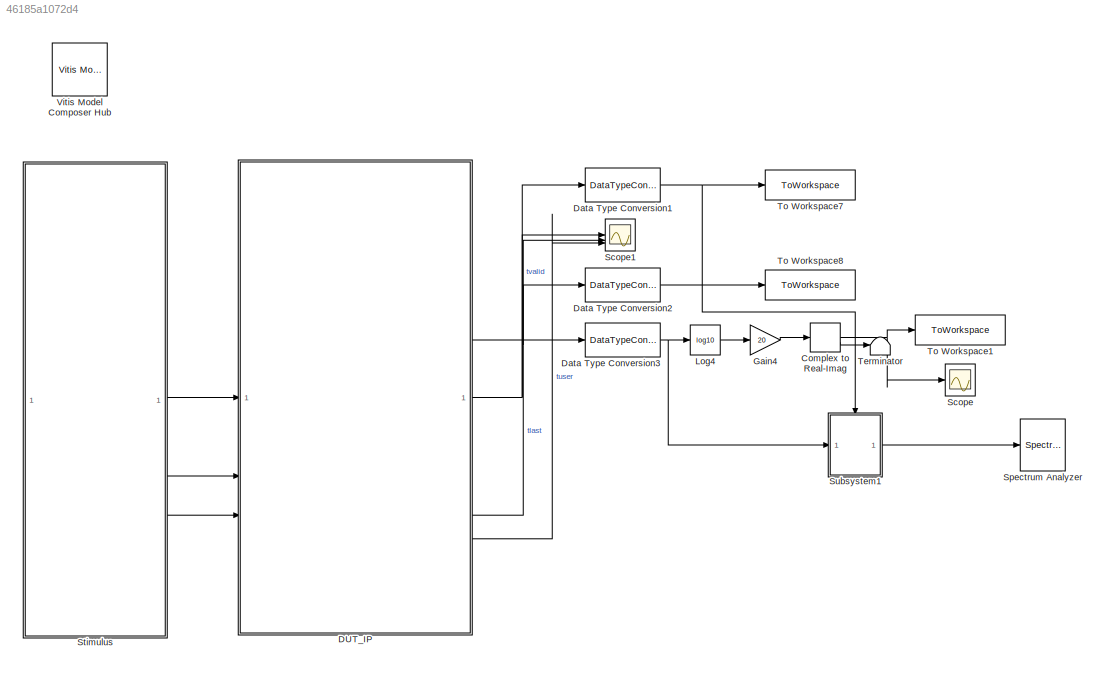
MODEL slx_46185a1072d4
KIND model
CONFIG AbsTol = auto
CONFIG EnableMultiTasking = off
CONFIG FixedStep = auto
CONFIG InitFcn = f = 12.288e6;\nfs = 5*61.44e6;\nN = 2048;\nn = 0:N-1;\nHamming = 0.54 - 0.46 * cos(2*pi*n/N);\nNorm_Ham = sum(Hamming);\nHanning = 0.5 * (1 + cos(2*pi*n/N));\nNorm_Han = sum(Hanning);
CONFIG MaxStep = auto
CONFIG MinStep = auto
CONFIG RelTol = 1e-3
CONFIG SampleTimeConstraint = Unconstrained
CONFIG SolverName = VariableStepAuto
CONFIG StartFcn = f = 12.288e6;\nfs = 5*61.44e6;\nN = 2048;\nn = 0:N-1;\nHamming = 0.54 - 0.46 * cos(2*pi*n/N);\nNorm_Ham = sum(Hamming);\nHanning = 0.5 * (1 + cos(2*pi*n/N));\nNorm_Han = sum(Hanning);
CONFIG StartTime = 0.0
CONFIG StopTime = 5*2*2048*15/fs
BLOCK [ComplexToRealImag] Complex to Real-Imag
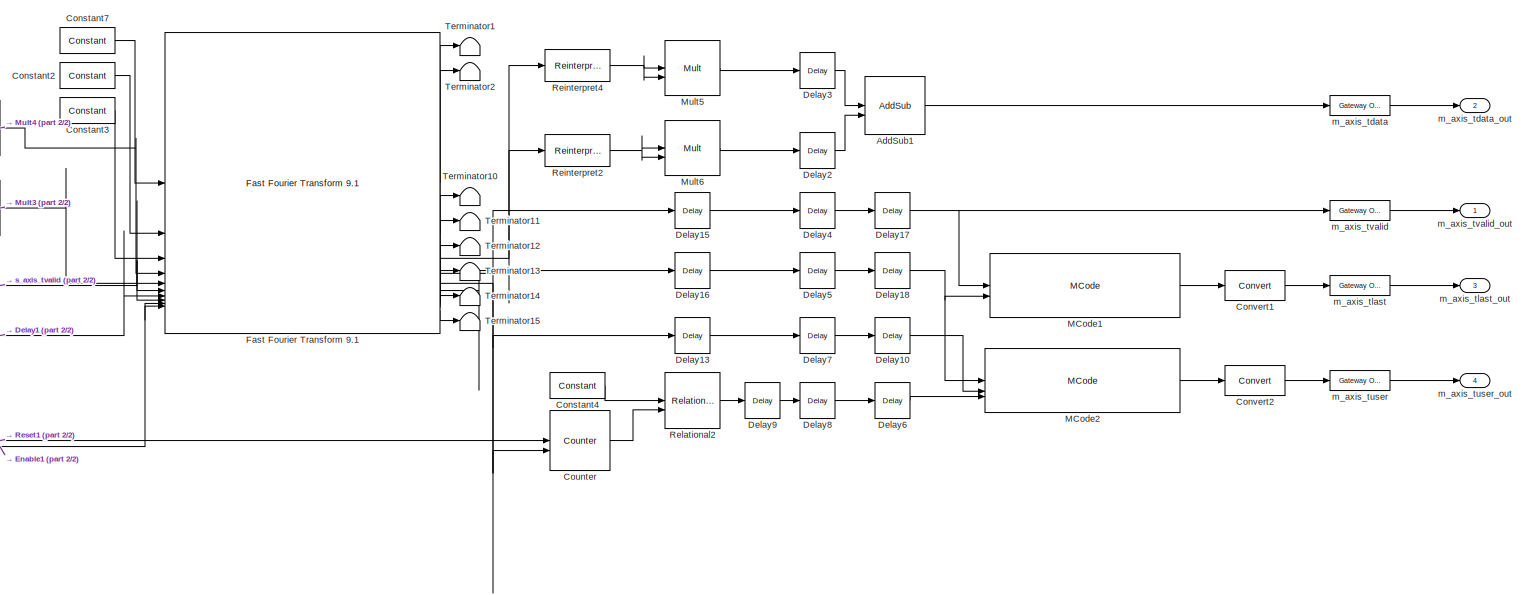
[diagram: DUT_IP - part 1/2, right side, full height]
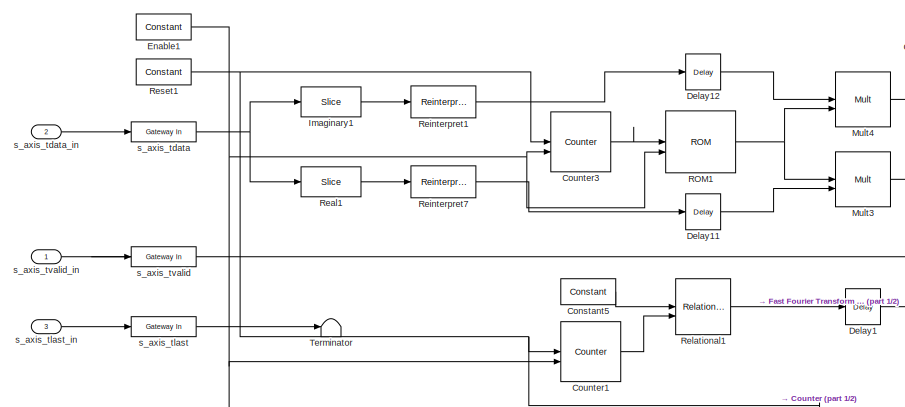
[diagram: DUT_IP - part 2/2, middle left region]
BLOCK [SubSystem] DUT_IP
BLOCK [Reference] DUT_IP/AddSub1  REF=hdlBasic/AddSub
  SourceBlock = hdlBasic/AddSub
  SourceType = Adder/Subtracter Block
BLOCK [Reference] DUT_IP/Constant2  REF=hdlBasic/Constant
  SourceBlock = hdlBasic/Constant
  SourceType = Constant Block Block
BLOCK [Reference] DUT_IP/Constant3  REF=hdlBasic/Constant
  SourceBlock = hdlBasic/Constant
  SourceType = Constant Block Block
BLOCK [Reference] DUT_IP/Constant4  REF=hdlBasic/Constant
  SourceBlock = hdlBasic/Constant
  SourceType = Constant Block Block
BLOCK [Reference] DUT_IP/Constant5  REF=hdlBasic/Constant
  SourceBlock = hdlBasic/Constant
  SourceType = Constant Block Block
BLOCK [Reference] DUT_IP/Constant7  REF=hdlBasic/Constant
  SourceBlock = hdlBasic/Constant
  SourceType = Constant Block Block
BLOCK [Reference] DUT_IP/Convert1  REF=hdlBasic/Convert
  SourceBlock = hdlBasic/Convert
  SourceType = Type Converter Block
BLOCK [Reference] DUT_IP/Convert2  REF=hdlBasic/Convert
  SourceBlock = hdlBasic/Convert
  SourceType = Type Converter Block
BLOCK [Reference] DUT_IP/Counter  REF=hdlBasic/Counter
  SourceBlock = hdlBasic/Counter
  SourceType = Counter Block
BLOCK [Reference] DUT_IP/Counter1  REF=hdlBasic/Counter
  SourceBlock = hdlBasic/Counter
  SourceType = Counter Block
BLOCK [Reference] DUT_IP/Counter3  REF=hdlBasic/Counter
  SourceBlock = hdlBasic/Counter
  SourceType = Counter Block
BLOCK [Reference] DUT_IP/Delay1  REF=hdlBasic/Delay
  SourceBlock = hdlBasic/Delay
  SourceType = Delay Block
BLOCK [Reference] DUT_IP/Delay10  REF=hdlBasic/Delay
  SourceBlock = hdlBasic/Delay
  SourceType = Delay Block
BLOCK [Reference] DUT_IP/Delay11  REF=hdlBasic/Delay
  SourceBlock = hdlBasic/Delay
  SourceType = Delay Block
BLOCK [Reference] DUT_IP/Delay12  REF=hdlBasic/Delay
  NameLocation = top
  SourceBlock = hdlBasic/Delay
  SourceType = Delay Block
BLOCK [Reference] DUT_IP/Delay13  REF=hdlBasic/Delay
  SourceBlock = hdlBasic/Delay
  SourceType = Delay Block
BLOCK [Reference] DUT_IP/Delay15  REF=hdlBasic/Delay
  SourceBlock = hdlBasic/Delay
  SourceType = Delay Block
BLOCK [Reference] DUT_IP/Delay16  REF=hdlBasic/Delay
  SourceBlock = hdlBasic/Delay
  SourceType = Delay Block
BLOCK [Reference] DUT_IP/Delay17  REF=hdlBasic/Delay
  SourceBlock = hdlBasic/Delay
  SourceType = Delay Block
BLOCK [Reference] DUT_IP/Delay18  REF=hdlBasic/Delay
  SourceBlock = hdlBasic/Delay
  SourceType = Delay Block
BLOCK [Reference] DUT_IP/Delay2  REF=hdlBasic/Delay
  SourceBlock = hdlBasic/Delay
  SourceType = Delay Block
BLOCK [Reference] DUT_IP/Delay3  REF=hdlBasic/Delay
  SourceBlock = hdlBasic/Delay
  SourceType = Delay Block
BLOCK [Reference] DUT_IP/Delay4  REF=hdlBasic/Delay
  SourceBlock = hdlBasic/Delay
  SourceType = Delay Block
BLOCK [Reference] DUT_IP/Delay5  REF=hdlBasic/Delay
  SourceBlock = hdlBasic/Delay
  SourceType = Delay Block
BLOCK [Reference] DUT_IP/Delay6  REF=hdlBasic/Delay
  SourceBlock = hdlBasic/Delay
  SourceType = Delay Block
BLOCK [Reference] DUT_IP/Delay7  REF=hdlBasic/Delay
  SourceBlock = hdlBasic/Delay
  SourceType = Delay Block
BLOCK [Reference] DUT_IP/Delay8  REF=hdlBasic/Delay
  SourceBlock = hdlBasic/Delay
  SourceType = Delay Block
BLOCK [Reference] DUT_IP/Delay9  REF=hdlBasic/Delay
  SourceBlock = hdlBasic/Delay
  SourceType = Delay Block
BLOCK [Reference] DUT_IP/Enable1  REF=hdlBasic/Constant
  SourceBlock = hdlBasic/Constant
  SourceType = Constant Block Block
BLOCK [Reference] DUT_IP/Fast Fourier Transform 9.1  REF=hdlDSPIP/Fast Fourier Transform 9.1 
  SourceBlock = hdlDSPIP/Fast Fourier Transform 9.1
  SourceType = Fast Fourier Transform 9.1  Block
BLOCK [Reference] DUT_IP/Imaginary1  REF=hdlBasic/Slice
  SourceBlock = hdlBasic/Slice
  SourceType = Bit Slice Extractor Block
BLOCK [Reference] DUT_IP/MCode1  REF=hdlBasic/MCode
  SourceBlock = hdlBasic/MCode
  SourceType = MCode
BLOCK [Reference] DUT_IP/MCode2  REF=hdlBasic/MCode
  SourceBlock = hdlBasic/MCode
  SourceType = MCode
BLOCK [Reference] DUT_IP/Mult3  REF=hdlBasic/Mult
  SourceBlock = hdlBasic/Mult
  SourceType = Multiplier Block
BLOCK [Reference] DUT_IP/Mult4  REF=hdlBasic/Mult
  SourceBlock = hdlBasic/Mult
  SourceType = Multiplier Block
BLOCK [Reference] DUT_IP/Mult5  REF=hdlBasic/Mult
  SourceBlock = hdlBasic/Mult
  SourceType = Multiplier Block
BLOCK [Reference] DUT_IP/Mult6  REF=hdlBasic/Mult
  SourceBlock = hdlBasic/Mult
  SourceType = Multiplier Block
BLOCK [Reference] DUT_IP/ROM1  REF=hdlBasic/ROM
  SourceBlock = hdlBasic/ROM
  SourceType = Single Port Read-Only Memory Block
BLOCK [Reference] DUT_IP/Real1  REF=hdlBasic/Slice
  SourceBlock = hdlBasic/Slice
  SourceType = Bit Slice Extractor Block
BLOCK [Reference] DUT_IP/Reinterpret1  REF=hdlBasic/Reinterpret
  SourceBlock = hdlBasic/Reinterpret
  SourceType = Type Reinterpreter Block
BLOCK [Reference] DUT_IP/Reinterpret2  REF=hdlBasic/Reinterpret
  SourceBlock = hdlBasic/Reinterpret
  SourceType = Type Reinterpreter Block
BLOCK [Reference] DUT_IP/Reinterpret4  REF=hdlBasic/Reinterpret
  SourceBlock = hdlBasic/Reinterpret
  SourceType = Type Reinterpreter Block
BLOCK [Reference] DUT_IP/Reinterpret7  REF=hdlBasic/Reinterpret
  SourceBlock = hdlBasic/Reinterpret
  SourceType = Type Reinterpreter Block
BLOCK [Reference] DUT_IP/Relational1  REF=hdlBasic/Relational
  SourceBlock = hdlBasic/Relational
  SourceType = Arithmetic Relational Operator Block
BLOCK [Reference] DUT_IP/Relational2  REF=hdlBasic/Relational
  SourceBlock = hdlBasic/Relational
  SourceType = Arithmetic Relational Operator Block
BLOCK [Reference] DUT_IP/Reset1  REF=hdlBasic/Constant
  SourceBlock = hdlBasic/Constant
  SourceType = Constant Block Block
BLOCK [Terminator] DUT_IP/Terminator
BLOCK [Terminator] DUT_IP/Terminator1
BLOCK [Terminator] DUT_IP/Terminator10
BLOCK [Terminator] DUT_IP/Terminator11
BLOCK [Terminator] DUT_IP/Terminator12
BLOCK [Terminator] DUT_IP/Terminator13
BLOCK [Terminator] DUT_IP/Terminator14
BLOCK [Terminator] DUT_IP/Terminator15
BLOCK [Terminator] DUT_IP/Terminator2
BLOCK [Reference] DUT_IP/m_axis_tdata  REF=hdlBasic/Gateway Out
  SourceBlock = hdlBasic/Gateway Out
  SourceType = Gateway Out Block
BLOCK [Outport] DUT_IP/m_axis_tdata_out
  Port = 2
BLOCK [Reference] DUT_IP/m_axis_tlast  REF=hdlBasic/Gateway Out
  SourceBlock = hdlBasic/Gateway Out
  SourceType = Gateway Out Block
BLOCK [Outport] DUT_IP/m_axis_tlast_out
  Port = 3
BLOCK [Reference] DUT_IP/m_axis_tuser  REF=hdlBasic/Gateway Out
  SourceBlock = hdlBasic/Gateway Out
  SourceType = Gateway Out Block
BLOCK [Outport] DUT_IP/m_axis_tuser_out
  Port = 4
BLOCK [Reference] DUT_IP/m_axis_tvalid  REF=hdlBasic/Gateway Out
  SourceBlock = hdlBasic/Gateway Out
  SourceType = Gateway Out Block
BLOCK [Outport] DUT_IP/m_axis_tvalid_out
BLOCK [Reference] DUT_IP/s_axis_tdata  REF=hdlBasic/Gateway In
  SourceBlock = hdlBasic/Gateway In
  SourceType = Gateway In Block
BLOCK [Inport] DUT_IP/s_axis_tdata_in
  Port = 2
BLOCK [Reference] DUT_IP/s_axis_tlast  REF=hdlBasic/Gateway In
  SourceBlock = hdlBasic/Gateway In
  SourceType = Gateway In Block
BLOCK [Inport] DUT_IP/s_axis_tlast_in
  Port = 3
BLOCK [Reference] DUT_IP/s_axis_tvalid  REF=hdlBasic/Gateway In
  SourceBlock = hdlBasic/Gateway In
  SourceType = Gateway In Block
BLOCK [Inport] DUT_IP/s_axis_tvalid_in
BLOCK [DataTypeConversion] Data Type Conversion1
  OutDataTypeStr = double
  RndMeth = Floor
BLOCK [DataTypeConversion] Data Type Conversion2
  OutDataTypeStr = double
  RndMeth = Floor
BLOCK [DataTypeConversion] Data Type Conversion3
  OutDataTypeStr = double
  RndMeth = Floor
BLOCK [Gain] Gain4
  Gain = 20
BLOCK [Math] Log4
  Operator = log10
  OutputSignalType = real
BLOCK [Scope] Scope
  Floating = off
  NumInputPorts = 1
  ScopeSpecificationString = Simulink.scopes.TimeScopeBlockCfg('CurrentConfiguration', extmgr.ConfigurationSet(extmgr.Configuration('Core','General UI',true),extmgr.Configuration('Core','Source UI',true),extmgr.Configuration('Sources','WiredSimulink',true,'DataLoggingVariableName','ScopeData1'),extmgr.Configuration('Visuals','Time Domain',true,'SerializedDisplays',{struct('MinYLimReal','-185.92436','MaxYLimReal','-12.44876','...<+1534ch>
BLOCK [Scope] Scope1
  Floating = off
  NumInputPorts = 3
  ScopeSpecificationString = Simulink.scopes.TimeScopeBlockCfg('CurrentConfiguration', extmgr.ConfigurationSet(extmgr.Configuration('Core','General UI',true),extmgr.Configuration('Core','Source UI',true),extmgr.Configuration('Sources','WiredSimulink',true),extmgr.Configuration('Visuals','Time Domain',true,'SerializedDisplays',{struct('MinYLimReal','-0.125','MaxYLimReal','1.125','YLabelReal','','MinYLimMag','0.00000','MaxYLimM...<+2762ch>
BLOCK [SpectrumAnalyzer] Spectrum Analyzer
  AveragingMethod = Exponential
  AxesScaling = Manual
  CenterFrequency = 2500
  DefaultConfigurationName = spbscopes.SpectrumAnalyzerBlockCfg
  ExpandToolstrip = on
  FrequencyInputRBWFromPort = 0
  FrequencyInputRBWPort = 0
  FrequencyVectorFromPort = 0
  FrequencyVectorPort = 0
  GraphicalSettings = {"GraphicalSettings":{"Style":{"BackgroundColor":[0.12941176470588237,0.12941176470588237,0.12941176470588237],"AxesColor":[0,0,0],"LabelsColor":[0.6862745098039216,0.6862745098039216,0.6862745098039216],"PreserveColors":false,"Visible":[true],"LineStyle":["-"],"LineColor":[[1,1,0.06666666666666667]],"LineWidth":[0.5],"Marker":["none"],"FontSize":"small"},"Cursors":{"Enabled":false,"XLocation":[2,...<+874ch>
  InputDomain = Frequency
  IsFrequencyInputMode = 1
  PlotAsTwoSidedSpectrum = off
  SampleRate = 307200000
  SampleRateSource = Property
  ScopeFrameLocation = window
  ScopeSpecificationString = spbscopes.SpectrumAnalyzerBlockCfg('CurrentConfiguration', extmgr.ConfigurationSet(extmgr.Configuration('Core','General UI',true),extmgr.Configuration('Core','Source UI',true),extmgr.Configuration('Sources','WiredSimulink',true),extmgr.Configuration('Sources','Simulink',false),extmgr.Configuration('Sources','File',false),extmgr.Configuration('Sources','Workspace',false),extmgr.Configuration('Sourc...<+2821ch>
  Span = 5000
  SpectrumUnits = Auto
  StartFrequency = 0
  WasSavedAsWebScope = on
  WindowPosition = [2638.000000,179.000000,800.000000,500.000000,]
  YLimits = [-0.0043880019802600136666,0.039492017822340130806]
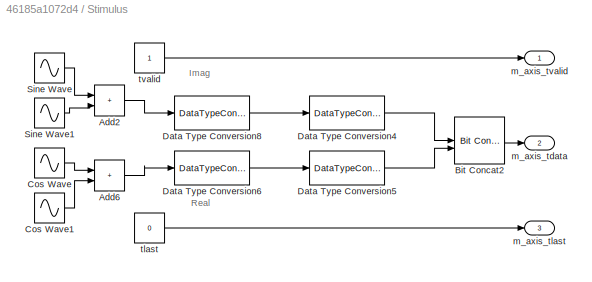
BLOCK [SubSystem] Stimulus
BLOCK [Sum] Stimulus/Add2
  IconShape = rectangular
BLOCK [Sum] Stimulus/Add6
  IconShape = rectangular
BLOCK [Reference] Stimulus/Bit Concat2  REF=hdlsllib/Logic and Bit
Operations/Bit Concat
  SourceBlock = hdlsllib/Logic and Bit\nOperations/Bit Concat
  SourceType = Bit Concat
BLOCK [Sin] Stimulus/Cos Wave
  Amplitude = 0.4
  Frequency = f*2*pi
  Phase = pi/2
  SampleTime = 1/fs
BLOCK [Sin] Stimulus/Cos Wave1
  Amplitude = 0.4
  Frequency = f*pi
  Phase = pi/2
  SampleTime = 1/fs
BLOCK [DataTypeConversion] Stimulus/Data Type Conversion4
  ConvertRealWorld = Stored Integer (SI)
  OutDataTypeStr = uint16
  RndMeth = Floor
  SaturateOnIntegerOverflow = off
BLOCK [DataTypeConversion] Stimulus/Data Type Conversion5
  ConvertRealWorld = Stored Integer (SI)
  OutDataTypeStr = uint16
  RndMeth = Floor
  SaturateOnIntegerOverflow = off
BLOCK [DataTypeConversion] Stimulus/Data Type Conversion6
  OutDataTypeStr = fixdt(1,16,15)
  RndMeth = Floor
BLOCK [DataTypeConversion] Stimulus/Data Type Conversion8
  OutDataTypeStr = fixdt(1,16,15)
  RndMeth = Floor
BLOCK [Sin] Stimulus/Sine Wave
  Amplitude = 0.4
  Frequency = f*2*pi
  SampleTime = 1/fs
BLOCK [Sin] Stimulus/Sine Wave1
  Amplitude = 0.4
  Frequency = f*pi
  SampleTime = 1/fs
BLOCK [Outport] Stimulus/m_axis_tdata
  Port = 2
BLOCK [Outport] Stimulus/m_axis_tlast
  Port = 3
BLOCK [Outport] Stimulus/m_axis_tvalid
BLOCK [Constant] Stimulus/tlast
  SampleTime = 1/fs
  Value = 0
BLOCK [Constant] Stimulus/tvalid
  SampleTime = 1/fs
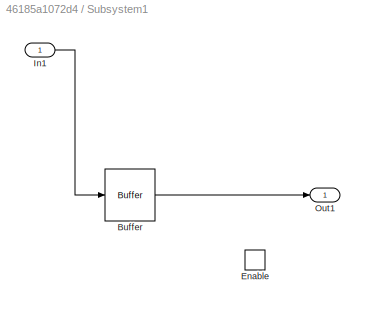
BLOCK [SubSystem] Subsystem1
BLOCK [Buffer] Subsystem1/Buffer
  N = 2048
  OutputFrames = off
BLOCK [EnablePort] Subsystem1/Enable
BLOCK [Inport] Subsystem1/In1
BLOCK [Outport] Subsystem1/Out1
BLOCK [Terminator] Terminator
BLOCK [ToWorkspace] To Workspace1
  FixptAsFi = on
  MaxDataPoints = inf
  SampleTime = -1
  Save2DSignal = 2-D array (concatenate along first dimension)
  VariableName = FFT_out_log
BLOCK [ToWorkspace] To Workspace7
  FixptAsFi = on
  MaxDataPoints = inf
  SampleTime = 1/fs
  Save2DSignal = 2-D array (concatenate along first dimension)
  VariableName = TVALID
BLOCK [ToWorkspace] To Workspace8
  FixptAsFi = on
  MaxDataPoints = inf
  SampleTime = 1/fs
  Save2DSignal = 2-D array (concatenate along first dimension)
  VariableName = TLAST
BLOCK [Reference] Vitis Model Composer Hub  REF=vmcUtilities/Vitis Model Composer Hub
  SourceBlock = vmcUtilities/Vitis Model Composer Hub
  SourceType = VMC Hub
  Tag = genX
  UserDataPersistent = on
ANNOTATION Stimulus: Imag
ANNOTATION Stimulus: Real
NET Complex to Real-Imag:1 -> Scope:1, To Workspace1:1
LINE Complex to Real-Imag:2 -> Terminator:1
LINE DUT_IP/AddSub1:1 -> DUT_IP/m_axis_tdata:1
LINE DUT_IP/Constant2:1 -> DUT_IP/Fast Fourier Transform 9.1:2
LINE DUT_IP/Constant3:1 -> DUT_IP/Fast Fourier Transform 9.1:3
LINE DUT_IP/Constant4:1 -> DUT_IP/Relational2:1
LINE DUT_IP/Constant5:1 -> DUT_IP/Relational1:1
LINE DUT_IP/Constant7:1 -> DUT_IP/Fast Fourier Transform 9.1:1
LINE DUT_IP/Convert1:1 -> DUT_IP/m_axis_tlast:1
LINE DUT_IP/Convert2:1 -> DUT_IP/m_axis_tuser:1
LINE DUT_IP/Counter1:1 -> DUT_IP/Relational1:2
LINE DUT_IP/Counter3:1 -> DUT_IP/ROM1:1
LINE DUT_IP/Counter:1 -> DUT_IP/Relational2:2
LINE DUT_IP/Delay10:1 -> DUT_IP/MCode2:2
LINE DUT_IP/Delay11:1 -> DUT_IP/Mult3:2
LINE DUT_IP/Delay12:1 -> DUT_IP/Mult4:1
LINE DUT_IP/Delay13:1 -> DUT_IP/Delay7:1
LINE DUT_IP/Delay15:1 -> DUT_IP/Delay4:1
LINE DUT_IP/Delay16:1 -> DUT_IP/Delay5:1
NET DUT_IP/Delay17:1 -> DUT_IP/MCode1:1, DUT_IP/m_axis_tvalid:1
NET DUT_IP/Delay18:1 -> DUT_IP/MCode1:2, DUT_IP/MCode2:1
LINE DUT_IP/Delay1:1 -> DUT_IP/Fast Fourier Transform 9.1:7
LINE DUT_IP/Delay2:1 -> DUT_IP/AddSub1:2
LINE DUT_IP/Delay3:1 -> DUT_IP/AddSub1:1
LINE DUT_IP/Delay4:1 -> DUT_IP/Delay17:1
LINE DUT_IP/Delay5:1 -> DUT_IP/Delay18:1
LINE DUT_IP/Delay6:1 -> DUT_IP/MCode2:3
LINE DUT_IP/Delay7:1 -> DUT_IP/Delay10:1
LINE DUT_IP/Delay8:1 -> DUT_IP/Delay6:1
LINE DUT_IP/Delay9:1 -> DUT_IP/Delay8:1
NET DUT_IP/Enable1:1 -> DUT_IP/Counter1:2, DUT_IP/Counter3:2, DUT_IP/Fast Fourier Transform 9.1:10, DUT_IP/Fast Fourier Transform 9.1:9, DUT_IP/ROM1:2
LINE DUT_IP/Fast Fourier Transform 9.1:1 -> DUT_IP/Terminator1:1
LINE DUT_IP/Fast Fourier Transform 9.1:10 -> DUT_IP/Terminator13:1
LINE DUT_IP/Fast Fourier Transform 9.1:11 -> DUT_IP/Terminator14:1
LINE DUT_IP/Fast Fourier Transform 9.1:12 -> DUT_IP/Terminator15:1
LINE DUT_IP/Fast Fourier Transform 9.1:2 -> DUT_IP/Terminator2:1
LINE DUT_IP/Fast Fourier Transform 9.1:3 -> DUT_IP/Reinterpret4:1
LINE DUT_IP/Fast Fourier Transform 9.1:4 -> DUT_IP/Reinterpret2:1
NET DUT_IP/Fast Fourier Transform 9.1:5 -> DUT_IP/Counter:2, DUT_IP/Delay13:1, DUT_IP/Delay15:1
LINE DUT_IP/Fast Fourier Transform 9.1:6 -> DUT_IP/Delay16:1
LINE DUT_IP/Fast Fourier Transform 9.1:7 -> DUT_IP/Terminator10:1
LINE DUT_IP/Fast Fourier Transform 9.1:8 -> DUT_IP/Terminator11:1
LINE DUT_IP/Fast Fourier Transform 9.1:9 -> DUT_IP/Terminator12:1
LINE DUT_IP/Imaginary1:1 -> DUT_IP/Reinterpret1:1
LINE DUT_IP/MCode1:1 -> DUT_IP/Convert1:1
LINE DUT_IP/MCode2:1 -> DUT_IP/Convert2:1
LINE DUT_IP/Mult3:1 -> DUT_IP/Fast Fourier Transform 9.1:5
LINE DUT_IP/Mult4:1 -> DUT_IP/Fast Fourier Transform 9.1:4
LINE DUT_IP/Mult5:1 -> DUT_IP/Delay3:1
LINE DUT_IP/Mult6:1 -> DUT_IP/Delay2:1
NET DUT_IP/ROM1:1 -> DUT_IP/Mult3:1, DUT_IP/Mult4:2
LINE DUT_IP/Real1:1 -> DUT_IP/Reinterpret7:1
LINE DUT_IP/Reinterpret1:1 -> DUT_IP/Delay12:1
NET DUT_IP/Reinterpret2:1 -> DUT_IP/Mult6:1, DUT_IP/Mult6:2
NET DUT_IP/Reinterpret4:1 -> DUT_IP/Mult5:1, DUT_IP/Mult5:2
LINE DUT_IP/Reinterpret7:1 -> DUT_IP/Delay11:1
LINE DUT_IP/Relational1:1 -> DUT_IP/Delay1:1
LINE DUT_IP/Relational2:1 -> DUT_IP/Delay9:1
NET DUT_IP/Reset1:1 -> DUT_IP/Counter1:1, DUT_IP/Counter3:1, DUT_IP/Counter:1
LINE DUT_IP/m_axis_tdata:1 -> DUT_IP/m_axis_tdata_out:1
LINE DUT_IP/m_axis_tlast:1 -> DUT_IP/m_axis_tlast_out:1
LINE DUT_IP/m_axis_tuser:1 -> DUT_IP/m_axis_tuser_out:1
LINE DUT_IP/m_axis_tvalid:1 -> DUT_IP/m_axis_tvalid_out:1
NET DUT_IP/s_axis_tdata:1 -> DUT_IP/Imaginary1:1, DUT_IP/Real1:1
LINE DUT_IP/s_axis_tdata_in:1 -> DUT_IP/s_axis_tdata:1
LINE DUT_IP/s_axis_tlast:1 -> DUT_IP/Terminator:1
LINE DUT_IP/s_axis_tlast_in:1 -> DUT_IP/s_axis_tlast:1
NET DUT_IP/s_axis_tvalid:1 -> DUT_IP/Fast Fourier Transform 9.1:6, DUT_IP/Fast Fourier Transform 9.1:8
LINE DUT_IP/s_axis_tvalid_in:1 -> DUT_IP/s_axis_tvalid:1
NET DUT_IP:1 -> Data Type Conversion1:1, Scope1:1
LINE DUT_IP:2 -> Data Type Conversion3:1
NET DUT_IP:3 -> Data Type Conversion2:1, Scope1:2
LINE DUT_IP:4 -> Scope1:3
NET Data Type Conversion1:1 -> Subsystem1:enable, To Workspace7:1
LINE Data Type Conversion2:1 -> To Workspace8:1
NET Data Type Conversion3:1 -> Log4:1, Subsystem1:1
LINE Gain4:1 -> Complex to Real-Imag:1
LINE Log4:1 -> Gain4:1
LINE Stimulus/Add2:1 -> Stimulus/Data Type Conversion8:1
LINE Stimulus/Add6:1 -> Stimulus/Data Type Conversion6:1
LINE Stimulus/Bit Concat2:1 -> Stimulus/m_axis_tdata:1
LINE Stimulus/Cos Wave1:1 -> Stimulus/Add6:2
LINE Stimulus/Cos Wave:1 -> Stimulus/Add6:1
LINE Stimulus/Data Type Conversion4:1 -> Stimulus/Bit Concat2:1
LINE Stimulus/Data Type Conversion5:1 -> Stimulus/Bit Concat2:2
LINE Stimulus/Data Type Conversion6:1 -> Stimulus/Data Type Conversion5:1
LINE Stimulus/Data Type Conversion8:1 -> Stimulus/Data Type Conversion4:1
LINE Stimulus/Sine Wave1:1 -> Stimulus/Add2:2
LINE Stimulus/Sine Wave:1 -> Stimulus/Add2:1
LINE Stimulus/tlast:1 -> Stimulus/m_axis_tlast:1
LINE Stimulus/tvalid:1 -> Stimulus/m_axis_tvalid:1
LINE Stimulus:1 -> DUT_IP:1
LINE Stimulus:2 -> DUT_IP:2
LINE Stimulus:3 -> DUT_IP:3
LINE Subsystem1/Buffer:1 -> Subsystem1/Out1:1
LINE Subsystem1/In1:1 -> Subsystem1/Buffer:1
LINE Subsystem1:1 -> Spectrum Analyzer:1
note: NET lines group one-source signal fan-out (src -> all destinations, sorted); 1:1 wires keep LINE
